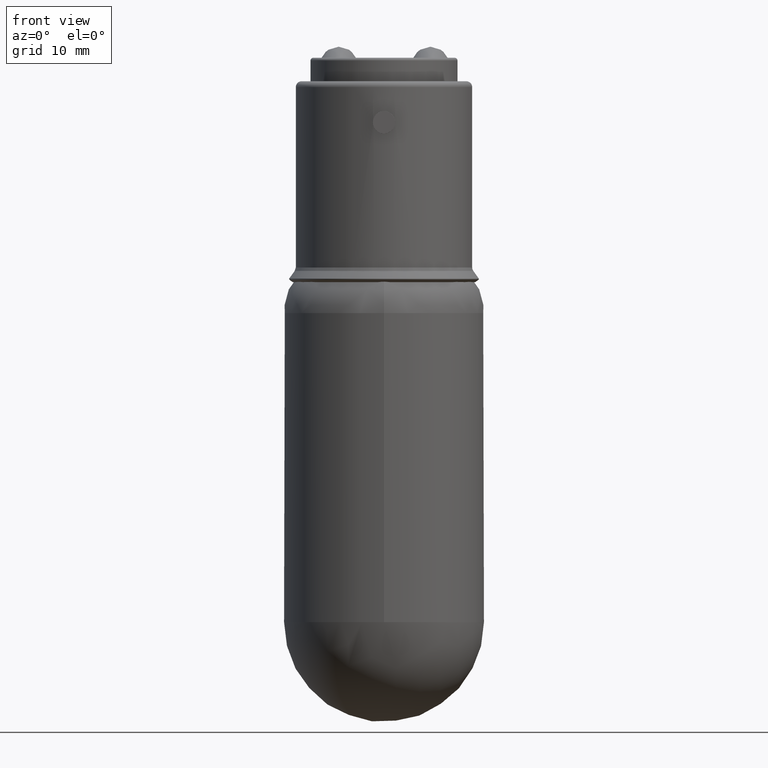
[diagram: clean part render]
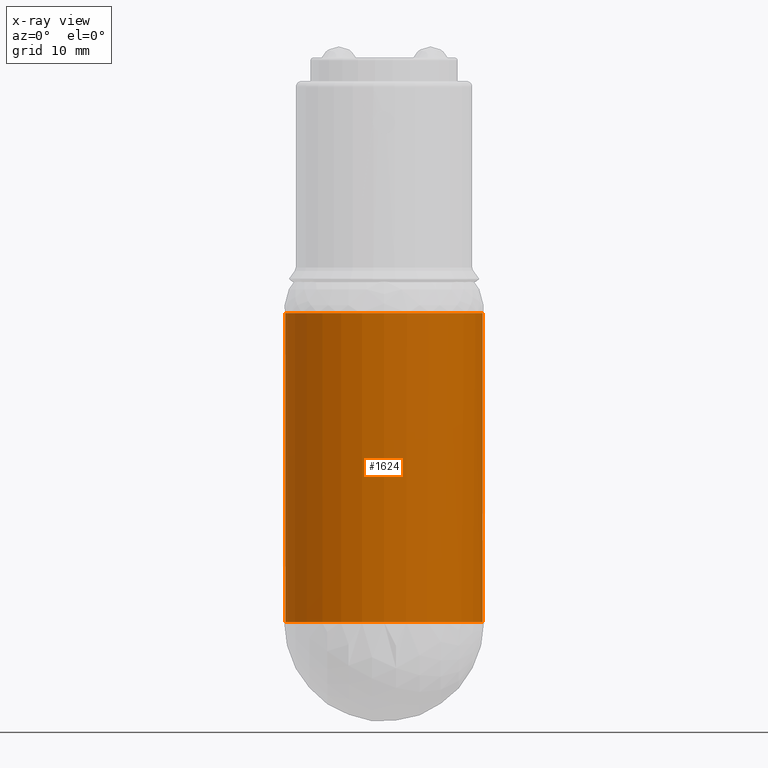
[diagram: x-ray — body ghosted, one internal face saturated and labeled with its STEP entity id]
A machine part, front view, then the same camera in x-ray: the body is ghosted and one INTERNAL B-rep face — a face not visible from any outside direction — is saturated and labeled: STEP entity #1624.
In plain terms, the highlighted cylindrical surface (bore or boss wall) has radius 8.4 mm, axis along (-0, 0, -1).
Its self-contained STEP definition (entity closure, byte-faithful):
#1582=CARTESIAN_POINT('',(-13.849487371039960,8.036423955264526,0.0));
#1583=VERTEX_POINT('',#1582);
#1584=CARTESIAN_POINT('',(-13.849487371039960,-0.363576044735471,0.0));
#1585=DIRECTION('',(1.0,0.0,0.0));
#1586=DIRECTION('',(0.0,1.0,0.0));
#1587=AXIS2_PLACEMENT_3D('',#1584,#1585,#1586);
#1588=CIRCLE('',#1587,8.399999999999997);
#1589=EDGE_CURVE('',#1583,#1583,#1588,.T.);
#1605=CARTESIAN_POINT('',(-0.709340425858760,-0.363576044735471,0.0));
#1606=DIRECTION('',(1.0,0.0,0.0));
#1607=DIRECTION('',(0.0,1.0,0.0));
#1608=AXIS2_PLACEMENT_3D('',#1605,#1606,#1607);
#1609=CYLINDRICAL_SURFACE('',#1608,8.400000000000000);
#1610=CARTESIAN_POINT('',(12.430806519322440,8.036423955264533,0.0));
#1611=VERTEX_POINT('',#1610);
#1612=CARTESIAN_POINT('',(12.430806519322440,-0.363576044735471,0.0));
#1613=DIRECTION('',(1.0,0.0,0.0));
#1614=DIRECTION('',(0.0,1.0,0.0));
#1615=AXIS2_PLACEMENT_3D('',#1612,#1613,#1614);
#1616=CIRCLE('',#1615,8.400000000000004);
#1617=EDGE_CURVE('',#1611,#1611,#1616,.T.);
#1618=ORIENTED_EDGE('',*,*,#1617,.T.);
#1619=EDGE_LOOP('',(#1618));
#1620=FACE_OUTER_BOUND('',#1619,.T.);
#1621=ORIENTED_EDGE('',*,*,#1589,.F.);
#1622=EDGE_LOOP('',(#1621));
#1623=FACE_BOUND('',#1622,.T.);
#1624=ADVANCED_FACE('',(#1620,#1623),#1609,.F.);